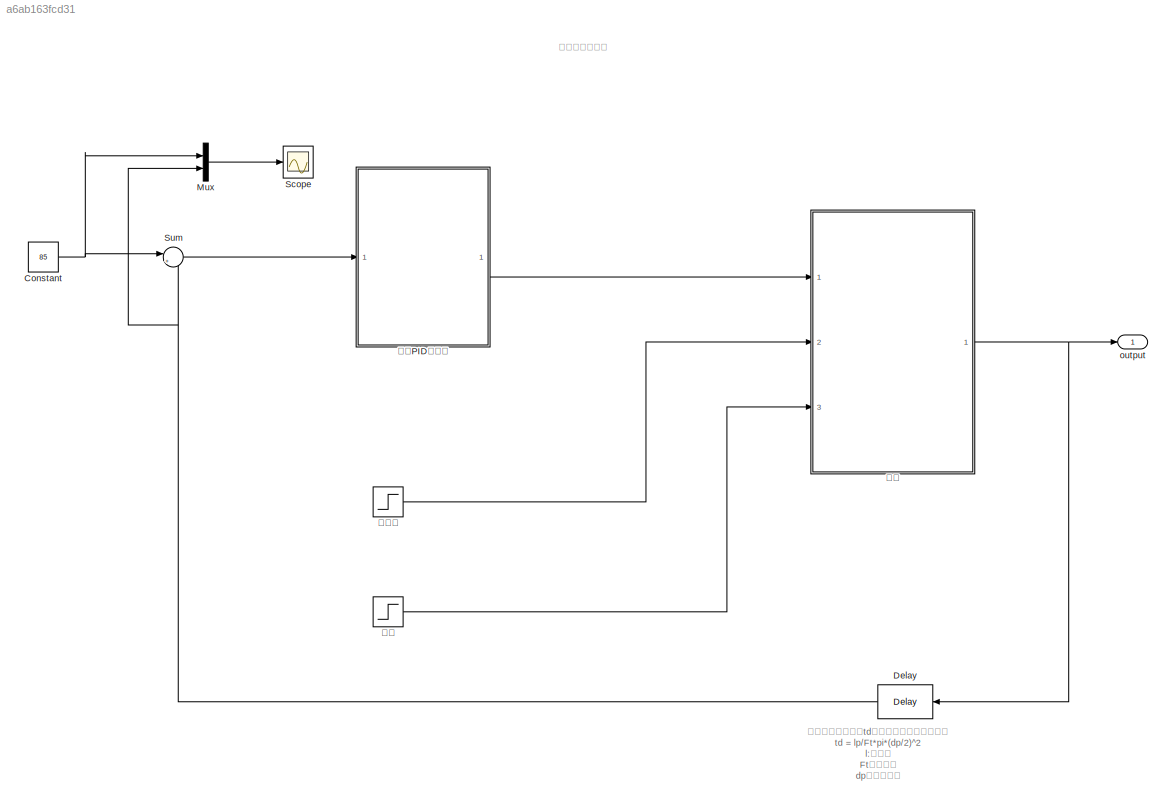
MODEL slx_a6ab163fcd31
KIND model
CONFIG AbsTol = auto
CONFIG EnableMultiTasking = off
CONFIG FixedStep = 0.24
CONFIG MaxStep = auto
CONFIG MinStep = auto
CONFIG RelTol = 1e-3
CONFIG SampleTimeConstraint = Unconstrained
CONFIG Solver = FixedStepAuto
CONFIG SolverName = FixedStepAuto
CONFIG StartTime = 0.0
CONFIG StopTime = 600
BLOCK [Constant] Constant
  Value = 85
BLOCK [Delay] Delay
  InputPortMap = u0
  Ports = [1, 1]
BLOCK [Mux] Mux
  DisplayOption = bar
  Inputs = 2
  Ports = [2, 1]
BLOCK [Scope] Scope
  Floating = off
  NumInputPorts = 1
  Ports = [1]
  ScopeSpecificationString = Simulink.scopes.TimeScopeBlockCfg('CurrentConfiguration', extmgr.ConfigurationSet(extmgr.Configuration('Core','General UI',true),extmgr.Configuration('Core','Source UI',true),extmgr.Configuration('Sources','WiredSimulink',true),extmgr.Configuration('Visuals','Time Domain',true,'SerializedDisplays',{struct('MinYLimReal','-14.29436','MaxYLimReal','128.64928','YLabelReal','','MinYLimMag','0.00000','M...<+1398ch>
BLOCK [Sum] Sum
  IconShape = round
  InputSameDT = off
  Inputs = |+-
  OutDataTypeStr = Inherit: Inherit via internal rule
  Ports = [2, 1]
  SaturateOnIntegerOverflow = off
BLOCK [Outport] output
  IconDisplay = Port number
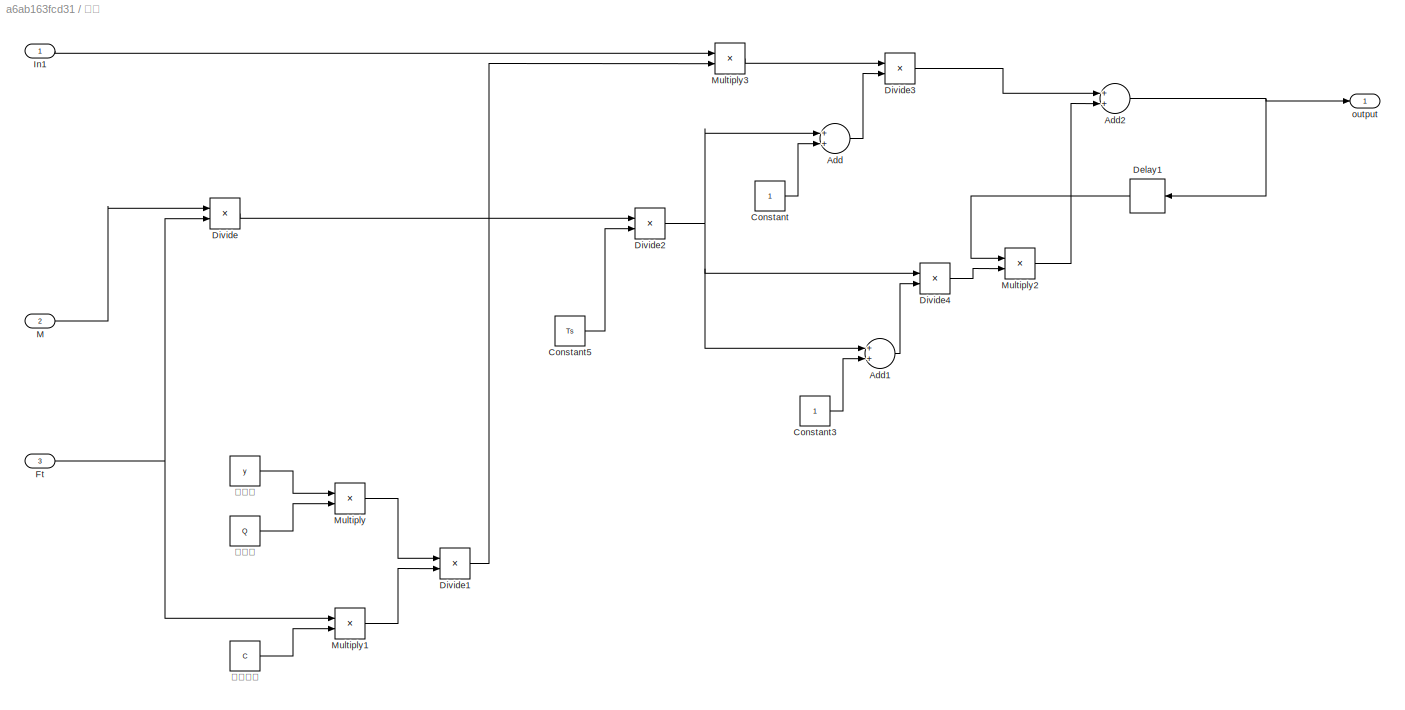
BLOCK [SubSystem] 模型
  Ports = [3, 1]
  RequestExecContextInheritance = off
BLOCK [Sum] 模型/Add
  InputSameDT = off
  OutDataTypeStr = Inherit: Inherit via internal rule
  Ports = [2, 1]
  SaturateOnIntegerOverflow = off
BLOCK [Sum] 模型/Add1
  InputSameDT = off
  OutDataTypeStr = Inherit: Inherit via internal rule
  Ports = [2, 1]
  SaturateOnIntegerOverflow = off
BLOCK [Sum] 模型/Add2
  InputSameDT = off
  OutDataTypeStr = Inherit: Inherit via internal rule
  Ports = [2, 1]
  SaturateOnIntegerOverflow = off
BLOCK [Constant] 模型/Constant
BLOCK [Constant] 模型/Constant3
BLOCK [Constant] 模型/Constant5
  Value = Ts
BLOCK [Delay] 模型/Delay1
  DelayLength = 1
  InputPortMap = u0
  Ports = [1, 1]
BLOCK [Product] 模型/Divide
  InputSameDT = off
  Inputs = */
  OutDataTypeStr = Inherit: Inherit via internal rule
  Ports = [2, 1]
  RndMeth = Floor
  SaturateOnIntegerOverflow = off
BLOCK [Product] 模型/Divide1
  InputSameDT = off
  Inputs = */
  OutDataTypeStr = Inherit: Inherit via internal rule
  Ports = [2, 1]
  RndMeth = Floor
  SaturateOnIntegerOverflow = off
BLOCK [Product] 模型/Divide2
  InputSameDT = off
  Inputs = */
  OutDataTypeStr = Inherit: Inherit via internal rule
  Ports = [2, 1]
  RndMeth = Floor
  SaturateOnIntegerOverflow = off
BLOCK [Product] 模型/Divide3
  InputSameDT = off
  Inputs = */
  OutDataTypeStr = Inherit: Inherit via internal rule
  Ports = [2, 1]
  RndMeth = Floor
  SaturateOnIntegerOverflow = off
BLOCK [Product] 模型/Divide4
  InputSameDT = off
  Inputs = */
  OutDataTypeStr = Inherit: Inherit via internal rule
  Ports = [2, 1]
  RndMeth = Floor
  SaturateOnIntegerOverflow = off
BLOCK [Inport] 模型/Ft
  IconDisplay = Port number
  Port = 3
BLOCK [Inport] 模型/In1
  IconDisplay = Port number
BLOCK [Inport] 模型/M
  IconDisplay = Port number
  Port = 2
BLOCK [Product] 模型/Multiply
  InputSameDT = off
  OutDataTypeStr = Inherit: Inherit via internal rule
  Ports = [2, 1]
  RndMeth = Floor
  SaturateOnIntegerOverflow = off
BLOCK [Product] 模型/Multiply1
  InputSameDT = off
  OutDataTypeStr = Inherit: Inherit via internal rule
  Ports = [2, 1]
  RndMeth = Floor
  SaturateOnIntegerOverflow = off
BLOCK [Product] 模型/Multiply2
  InputSameDT = off
  OutDataTypeStr = Inherit: Inherit via internal rule
  Ports = [2, 1]
  RndMeth = Floor
  SaturateOnIntegerOverflow = off
BLOCK [Product] 模型/Multiply3
  InputSameDT = off
  OutDataTypeStr = Inherit: Inherit via internal rule
  Ports = [2, 1]
  RndMeth = Floor
  SaturateOnIntegerOverflow = off
BLOCK [Outport] 模型/output
  IconDisplay = Port number
BLOCK [Constant] 模型/水比热容
  Value = C
BLOCK [Constant] 模型/热效率
  Value = y
BLOCK [Constant] 模型/燃烧值
  Value = Q
BLOCK [Step] 水质量
  After = 40
  Before = 5
  SampleTime = 0
BLOCK [Step] 流量
  After = 2
  Before = 5
  SampleTime = 0
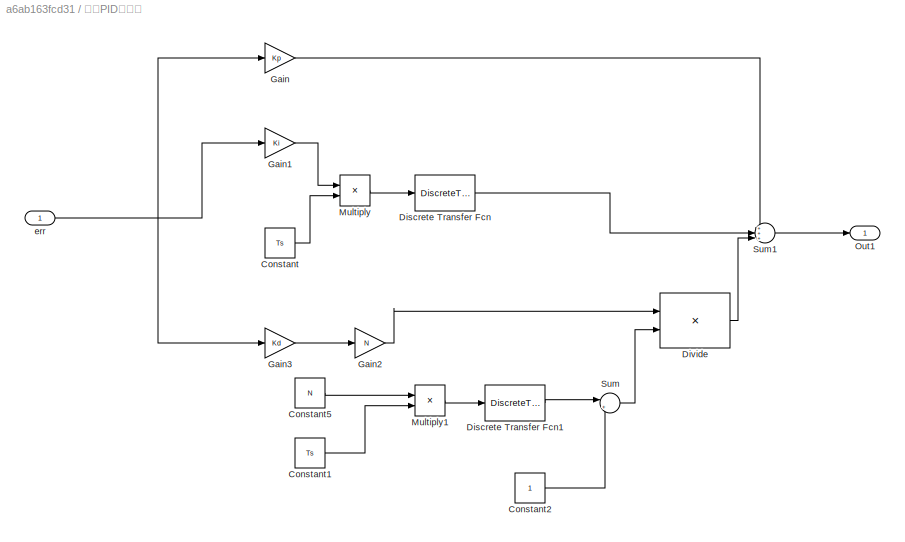
BLOCK [SubSystem] 离散PID控制器
  Ports = [1, 1]
  RequestExecContextInheritance = off
BLOCK [Constant] 离散PID控制器/Constant
  Value = Ts
BLOCK [Constant] 离散PID控制器/Constant1
  Value = Ts
BLOCK [Constant] 离散PID控制器/Constant2
BLOCK [Constant] 离散PID控制器/Constant5
  Value = N
BLOCK [DiscreteTransferFcn] 离散PID控制器/Discrete Transfer Fcn
  Denominator = [1 -1]
  InputPortMap = u0
  Ports = [1, 1]
BLOCK [DiscreteTransferFcn] 离散PID控制器/Discrete Transfer Fcn1
  Denominator = [1 -1]
  InputPortMap = u0
  Ports = [1, 1]
BLOCK [Product] 离散PID控制器/Divide
  InputSameDT = off
  Inputs = */
  OutDataTypeStr = Inherit: Inherit via internal rule
  Ports = [2, 1]
  RndMeth = Floor
  SaturateOnIntegerOverflow = off
BLOCK [Gain] 离散PID控制器/Gain
  Gain = Kp
  OutDataTypeStr = Inherit: Inherit via internal rule
  ParamDataTypeStr = Inherit: Inherit via internal rule
  SaturateOnIntegerOverflow = off
BLOCK [Gain] 离散PID控制器/Gain1
  Gain = Ki
  OutDataTypeStr = Inherit: Inherit via internal rule
  ParamDataTypeStr = Inherit: Inherit via internal rule
  SaturateOnIntegerOverflow = off
BLOCK [Gain] 离散PID控制器/Gain2
  Gain = N
  OutDataTypeStr = Inherit: Inherit via internal rule
  ParamDataTypeStr = Inherit: Inherit via internal rule
  SaturateOnIntegerOverflow = off
BLOCK [Gain] 离散PID控制器/Gain3
  Gain = Kd
  OutDataTypeStr = Inherit: Inherit via internal rule
  ParamDataTypeStr = Inherit: Inherit via internal rule
  SaturateOnIntegerOverflow = off
BLOCK [Product] 离散PID控制器/Multiply
  InputSameDT = off
  OutDataTypeStr = Inherit: Inherit via internal rule
  Ports = [2, 1]
  RndMeth = Floor
  SaturateOnIntegerOverflow = off
BLOCK [Product] 离散PID控制器/Multiply1
  InputSameDT = off
  OutDataTypeStr = Inherit: Inherit via internal rule
  Ports = [2, 1]
  RndMeth = Floor
  SaturateOnIntegerOverflow = off
BLOCK [Outport] 离散PID控制器/Out1
  IconDisplay = Port number
BLOCK [Sum] 离散PID控制器/Sum
  IconShape = round
  InputSameDT = off
  Inputs = |++
  OutDataTypeStr = Inherit: Inherit via internal rule
  Ports = [2, 1]
  SaturateOnIntegerOverflow = off
BLOCK [Sum] 离散PID控制器/Sum1
  IconShape = round
  InputSameDT = off
  Inputs = +++|
  OutDataTypeStr = Inherit: Inherit via internal rule
  Ports = [3, 1]
  SaturateOnIntegerOverflow = off
BLOCK [Inport] 离散PID控制器/err
  IconDisplay = Port number
ANNOTATION (root): 燃气热水器模型
ANNOTATION (root): 模型中的延迟时间td，可根据下面公式计算： td = lp/Ft*pi*(dp/2)^2 l:水管长 Ft：水流量 dp：水管内径
NET Constant:1 -> Mux:1, Sum:1
NET Delay:1 -> Mux:2, Sum:2
LINE Mux:1 -> Scope:1
LINE Sum:1 -> 离散PID控制器:1
LINE 模型/Add1:1 -> 模型/Divide4:2
NET 模型/Add2:1 -> 模型/Delay1:1, 模型/output:1
LINE 模型/Add:1 -> 模型/Divide3:2
LINE 模型/Constant3:1 -> 模型/Add1:2
LINE 模型/Constant5:1 -> 模型/Divide2:2
LINE 模型/Constant:1 -> 模型/Add:2
LINE 模型/Delay1:1 -> 模型/Multiply2:1
LINE 模型/Divide1:1 -> 模型/Multiply3:2
NET 模型/Divide2:1 -> 模型/Add1:1, 模型/Add:1, 模型/Divide4:1
LINE 模型/Divide3:1 -> 模型/Add2:1
LINE 模型/Divide4:1 -> 模型/Multiply2:2
LINE 模型/Divide:1 -> 模型/Divide2:1
NET 模型/Ft:1 -> 模型/Divide:2, 模型/Multiply1:1
LINE 模型/In1:1 -> 模型/Multiply3:1
LINE 模型/M:1 -> 模型/Divide:1
LINE 模型/Multiply1:1 -> 模型/Divide1:2
LINE 模型/Multiply2:1 -> 模型/Add2:2
LINE 模型/Multiply3:1 -> 模型/Divide3:1
LINE 模型/Multiply:1 -> 模型/Divide1:1
LINE 模型/水比热容:1 -> 模型/Multiply1:2
LINE 模型/热效率:1 -> 模型/Multiply:1
LINE 模型/燃烧值:1 -> 模型/Multiply:2
NET 模型:1 -> Delay:1, output:1
LINE 水质量:1 -> 模型:2
LINE 流量:1 -> 模型:3
LINE 离散PID控制器/Constant1:1 -> 离散PID控制器/Multiply1:2
LINE 离散PID控制器/Constant2:1 -> 离散PID控制器/Sum:2
LINE 离散PID控制器/Constant5:1 -> 离散PID控制器/Multiply1:1
LINE 离散PID控制器/Constant:1 -> 离散PID控制器/Multiply:2
LINE 离散PID控制器/Discrete Transfer Fcn1:1 -> 离散PID控制器/Sum:1
LINE 离散PID控制器/Discrete Transfer Fcn:1 -> 离散PID控制器/Sum1:2
LINE 离散PID控制器/Divide:1 -> 离散PID控制器/Sum1:3
LINE 离散PID控制器/Gain1:1 -> 离散PID控制器/Multiply:1
LINE 离散PID控制器/Gain2:1 -> 离散PID控制器/Divide:1
LINE 离散PID控制器/Gain3:1 -> 离散PID控制器/Gain2:1
LINE 离散PID控制器/Gain:1 -> 离散PID控制器/Sum1:1
LINE 离散PID控制器/Multiply1:1 -> 离散PID控制器/Discrete Transfer Fcn1:1
LINE 离散PID控制器/Multiply:1 -> 离散PID控制器/Discrete Transfer Fcn:1
LINE 离散PID控制器/Sum1:1 -> 离散PID控制器/Out1:1
LINE 离散PID控制器/Sum:1 -> 离散PID控制器/Divide:2
NET 离散PID控制器/err:1 -> 离散PID控制器/Gain1:1, 离散PID控制器/Gain3:1, 离散PID控制器/Gain:1
LINE 离散PID控制器:1 -> 模型:1
note: NET lines group one-source signal fan-out (src -> all destinations, sorted); 1:1 wires keep LINE
